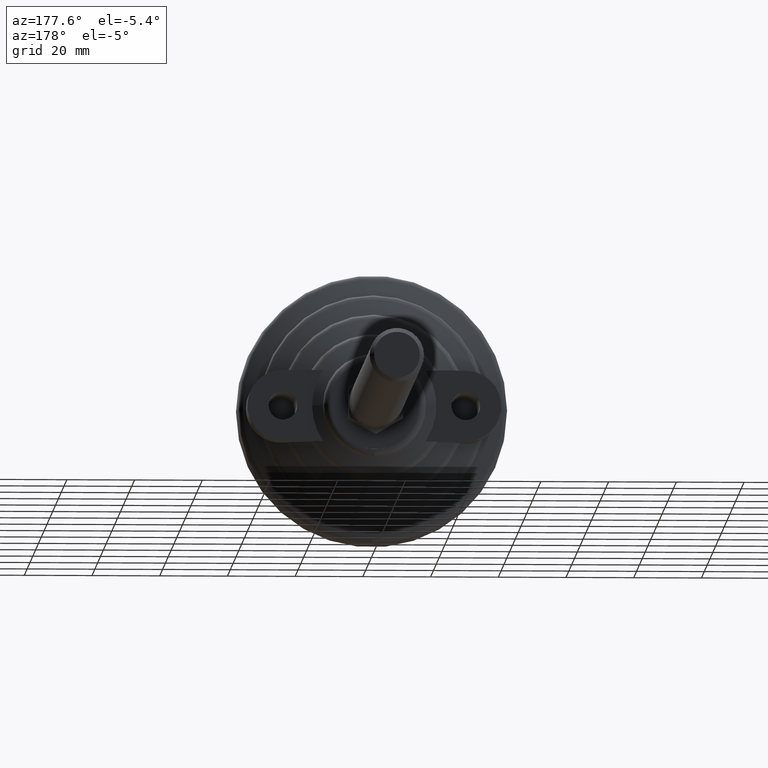
[diagram: clean part render]
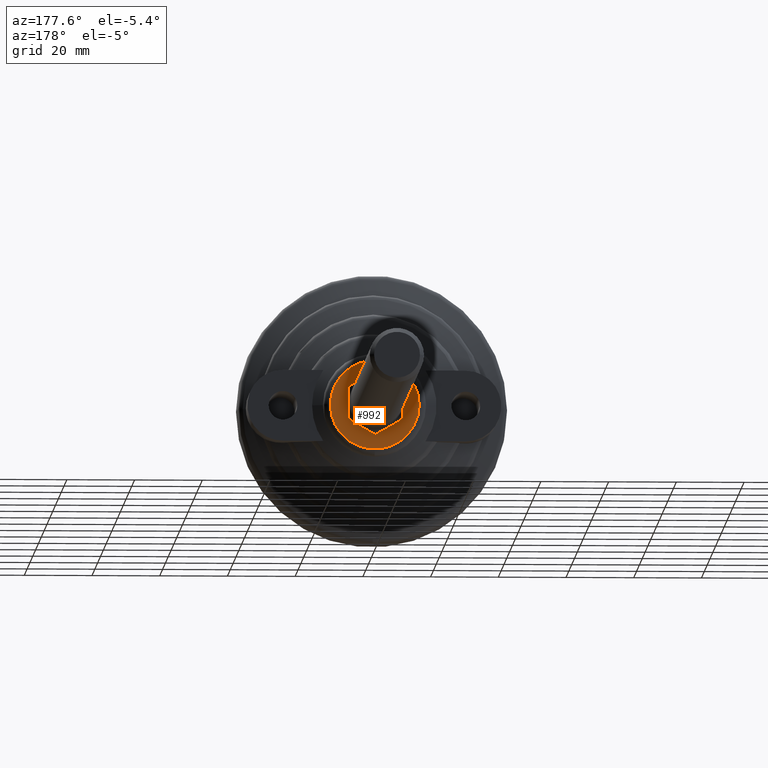
[diagram: same view with one face highlighted and labeled with its STEP entity id]
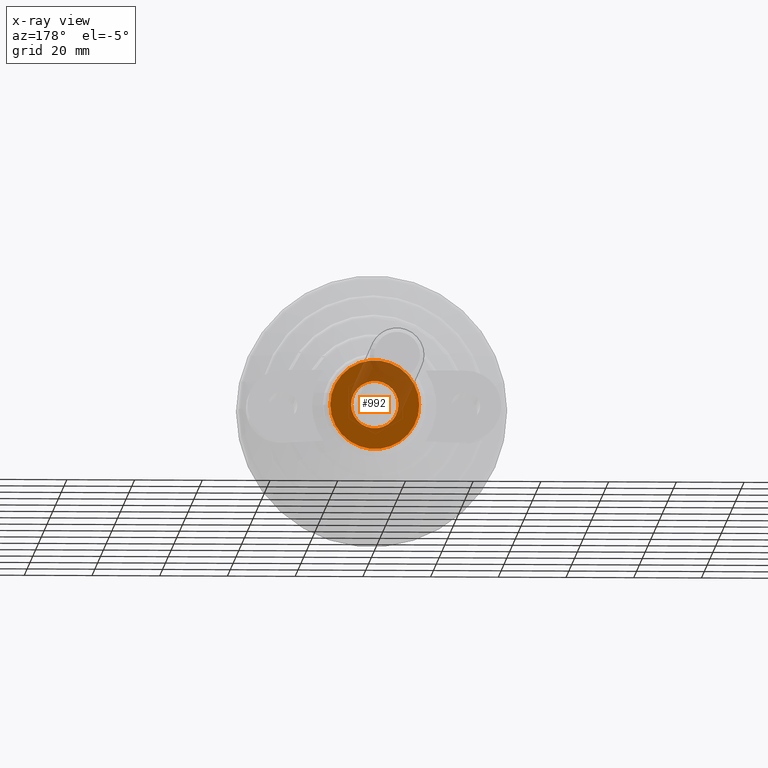
[diagram: x-ray of the same camera — body ghosted, the highlighted face saturated]
A machine part, auxiliary view. The second image highlights one B-rep face of the part: STEP entity #992.
The next image is the same camera in x-ray: the body ghosted, the highlighted face saturated — about 31% of this face is hidden behind the body in this view.
In plain terms, the highlighted planar face has unit normal (0, 1, 0).
Its self-contained STEP definition (entity closure, byte-faithful):
#100=FACE_BOUND('',#237,.T.);
#131=PLANE('',#1147);
#175=FACE_OUTER_BOUND('',#236,.T.);
#236=EDGE_LOOP('',(#839,#840));
#237=EDGE_LOOP('',(#841));
#315=CIRCLE('',#1064,7.);
#365=CIRCLE('',#1145,13.13);
#366=CIRCLE('',#1146,13.13);
#388=VERTEX_POINT('',#1500);
#457=VERTEX_POINT('',#1891);
#458=VERTEX_POINT('',#1892);
#493=EDGE_CURVE('',#388,#388,#315,.T.);
#589=EDGE_CURVE('',#457,#458,#365,.T.);
#590=EDGE_CURVE('',#458,#457,#366,.T.);
#839=ORIENTED_EDGE('',*,*,#589,.T.);
#840=ORIENTED_EDGE('',*,*,#590,.T.);
#841=ORIENTED_EDGE('',*,*,#493,.T.);
#992=ADVANCED_FACE('',(#175,#100),#131,.T.);
#1064=AXIS2_PLACEMENT_3D('',#1501,#1204,#1205);
#1145=AXIS2_PLACEMENT_3D('',#1893,#1381,#1382);
#1146=AXIS2_PLACEMENT_3D('',#1894,#1383,#1384);
#1147=AXIS2_PLACEMENT_3D('',#1896,#1386,#1387);
#1204=DIRECTION('center_axis',(0.,-1.,0.));
#1205=DIRECTION('ref_axis',(1.,0.,0.));
#1381=DIRECTION('center_axis',(0.,1.,0.));
#1382=DIRECTION('ref_axis',(-1.,0.,0.));
#1383=DIRECTION('center_axis',(0.,1.,0.));
#1384=DIRECTION('ref_axis',(-1.,0.,0.));
#1386=DIRECTION('center_axis',(0.,1.,0.));
#1387=DIRECTION('ref_axis',(0.,0.,1.));
#1500=CARTESIAN_POINT('',(-7.,24.,-8.57252759403147E-16));
#1501=CARTESIAN_POINT('Origin',(0.,24.,0.));
#1891=CARTESIAN_POINT('',(-13.13,24.,0.));
#1892=CARTESIAN_POINT('',(13.13,24.,-1.60796124728047E-15));
#1893=CARTESIAN_POINT('Origin',(0.,24.,0.));
#1894=CARTESIAN_POINT('Origin',(0.,24.,0.));
#1896=CARTESIAN_POINT('Origin',(-6.565,24.,0.));